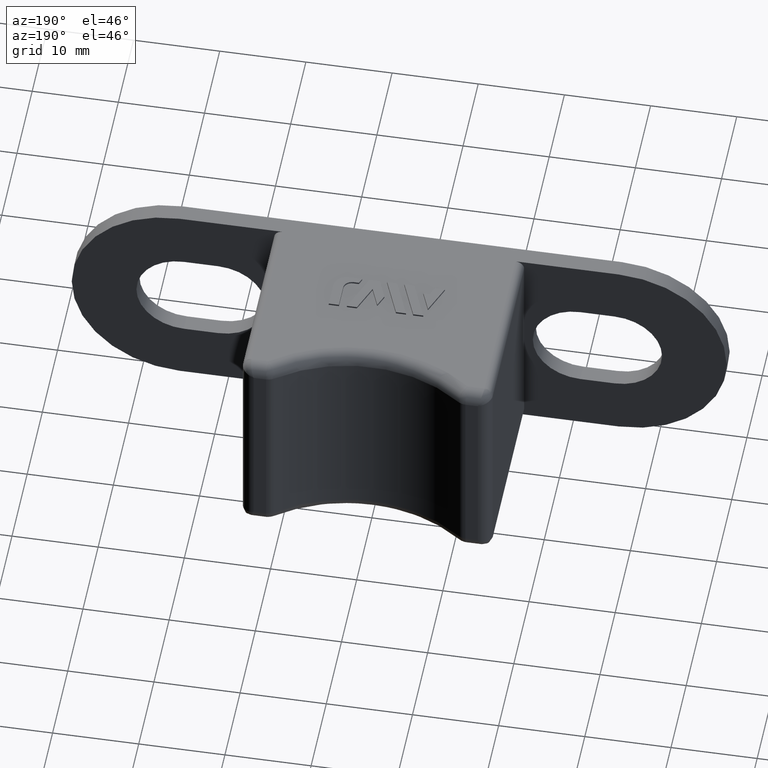
[diagram: clean part render]
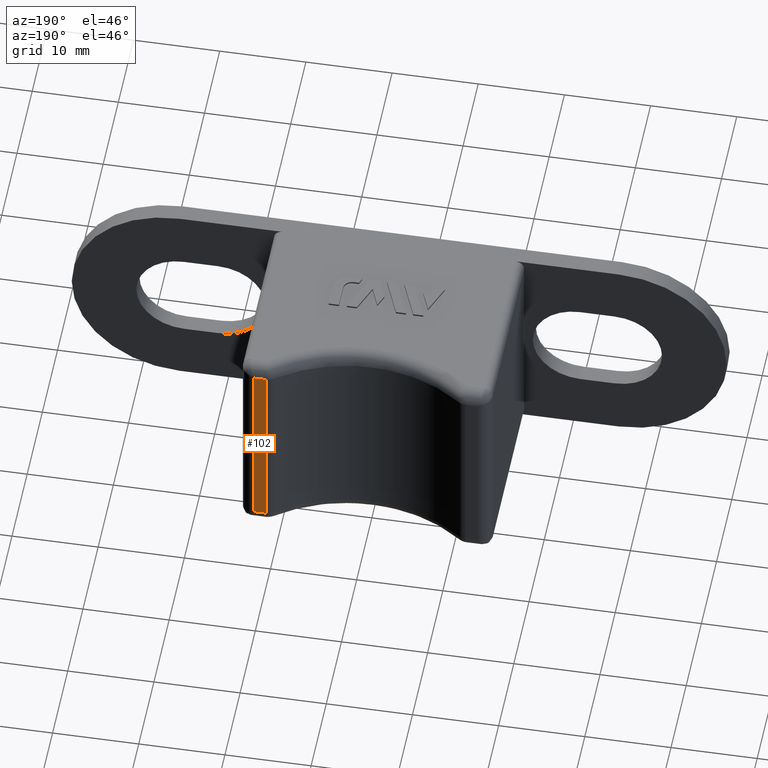
[diagram: same view with one face highlighted and labeled with its STEP entity id]
A machine part, auxiliary view. The second image highlights one B-rep face of the part: STEP entity #102.
In plain terms, the highlighted planar face has unit normal (0, 1, 0).
Its self-contained STEP definition (entity closure, byte-faithful):
#102 = ADVANCED_FACE( '', ( #392 ), #393, .T. );
#392 = FACE_OUTER_BOUND( '', #1148, .T. );
#393 = PLANE( '', #1149 );
#1148 = EDGE_LOOP( '', ( #2194, #2195, #2196, #2197 ) );
#1149 = AXIS2_PLACEMENT_3D( '', #2198, #2199, #2200 );
#2194 = ORIENTED_EDGE( '', *, *, #3906, .T. );
#2195 = ORIENTED_EDGE( '', *, *, #3907, .T. );
#2196 = ORIENTED_EDGE( '', *, *, #3908, .T. );
#2197 = ORIENTED_EDGE( '', *, *, #3909, .T. );
#2198 = CARTESIAN_POINT( '', ( 14.5000000000000, 24.0000000000000, -12.5000000000000 ) );
#2199 = DIRECTION( '', ( 0.000000000000000, 1.00000000000000, 0.000000000000000 ) );
#2200 = DIRECTION( '', ( 1.00000000000000, 0.000000000000000, 0.000000000000000 ) );
#3906 = EDGE_CURVE( '', #4714, #4715, #4716, .T. );
#3907 = EDGE_CURVE( '', #4715, #4717, #4718, .T. );
#3908 = EDGE_CURVE( '', #4717, #4719, #4720, .F. );
#3909 = EDGE_CURVE( '', #4719, #4714, #4721, .F. );
#4714 = VERTEX_POINT( '', #5879 );
#4715 = VERTEX_POINT( '', #5880 );
#4716 = LINE( '', #5881, #5882 );
#4717 = VERTEX_POINT( '', #5883 );
#4718 = LINE( '', #5884, #5885 );
#4719 = VERTEX_POINT( '', #5886 );
#4720 = LINE( '', #5887, #5888 );
#4721 = LINE( '', #5889, #5890 );
#5879 = CARTESIAN_POINT( '', ( 13.0000000000000, 24.0000000000000, -11.0000000000000 ) );
#5880 = CARTESIAN_POINT( '', ( 11.5758369027902, 24.0000000000000, -11.0000000000000 ) );
#5881 = CARTESIAN_POINT( '', ( 14.5000000000000, 24.0000000000000, -11.0000000000000 ) );
#5882 = VECTOR( '', #6918, 1000.00000000000 );
#5883 = CARTESIAN_POINT( '', ( 11.5758369027902, 24.0000000000000, 11.0000000000000 ) );
#5884 = CARTESIAN_POINT( '', ( 11.5758369027902, 24.0000000000000, -12.5000000000000 ) );
#5885 = VECTOR( '', #6919, 1000.00000000000 );
#5886 = CARTESIAN_POINT( '', ( 13.0000000000000, 24.0000000000000, 11.0000000000000 ) );
#5887 = CARTESIAN_POINT( '', ( 13.5000000000000, 24.0000000000000, 11.0000000000000 ) );
#5888 = VECTOR( '', #6920, 1000.00000000000 );
#5889 = CARTESIAN_POINT( '', ( 13.0000000000000, 24.0000000000000, -12.5000000000000 ) );
#5890 = VECTOR( '', #6921, 1000.00000000000 );
#6918 = DIRECTION( '', ( -1.00000000000000, 0.000000000000000, 0.000000000000000 ) );
#6919 = DIRECTION( '', ( 0.000000000000000, 0.000000000000000, 1.00000000000000 ) );
#6920 = DIRECTION( '', ( -1.00000000000000, 0.000000000000000, 0.000000000000000 ) );
#6921 = DIRECTION( '', ( 0.000000000000000, 0.000000000000000, 1.00000000000000 ) );